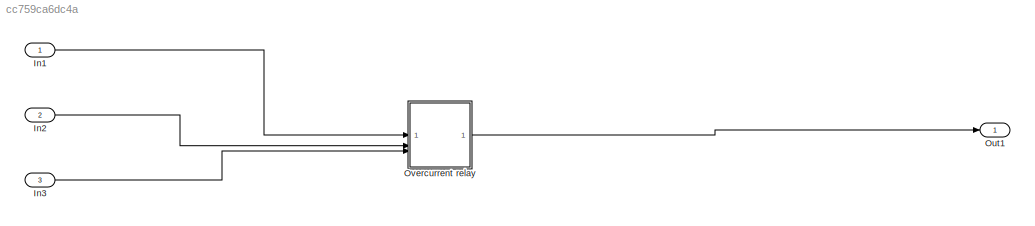
MODEL slx_cc759ca6dc4a
KIND model
CONFIG AbsTol = auto
CONFIG EnableMultiTasking = off
CONFIG FixedStep = auto
CONFIG MaxStep = auto
CONFIG MinStep = auto
CONFIG RelTol = 1e-3
CONFIG SampleTimeConstraint = Unconstrained
CONFIG SolverName = VariableStepAuto
CONFIG StartTime = 0.0
CONFIG StopTime = 10.0
BLOCK [Inport] In1
BLOCK [Inport] In2
  Port = 2
BLOCK [Inport] In3
  Port = 3
BLOCK [Outport] Out1
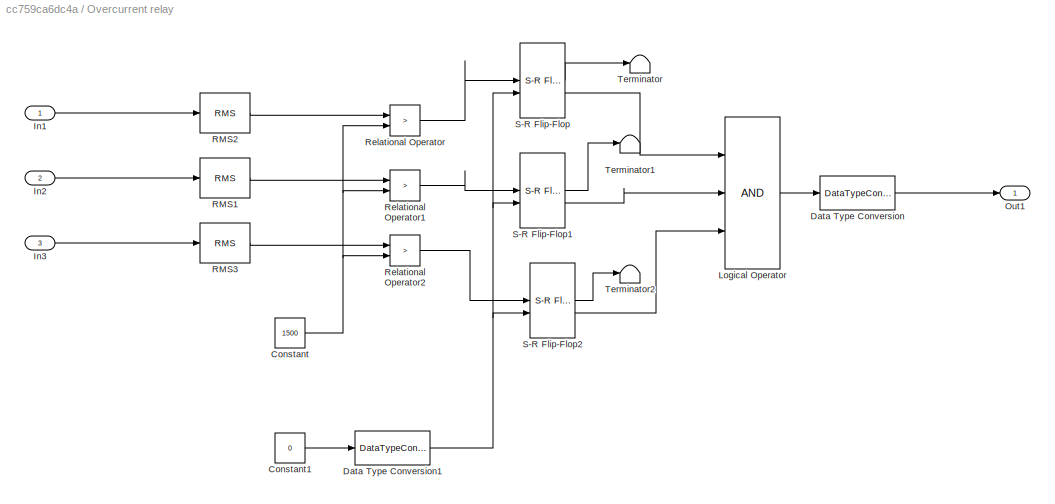
BLOCK [SubSystem] Overcurrent relay
BLOCK [Constant] Overcurrent relay/Constant
  Value = 1500
BLOCK [Constant] Overcurrent relay/Constant1
  Value = 0
BLOCK [DataTypeConversion] Overcurrent relay/Data Type Conversion
  OutDataTypeStr = double
  RndMeth = Floor
  SaturateOnIntegerOverflow = off
BLOCK [DataTypeConversion] Overcurrent relay/Data Type Conversion1
  OutDataTypeStr = boolean
  RndMeth = Floor
  SaturateOnIntegerOverflow = off
BLOCK [Inport] Overcurrent relay/In1
BLOCK [Inport] Overcurrent relay/In2
  Port = 2
BLOCK [Inport] Overcurrent relay/In3
  Port = 3
BLOCK [Logic] Overcurrent relay/Logical Operator
  AllPortsSameDT = off
  Inputs = 3
  OutDataTypeStr = boolean
BLOCK [Outport] Overcurrent relay/Out1
BLOCK [Reference] Overcurrent relay/RMS1  REF=spsRMSLib/RMS
  LibrarySourceBlock = sps_lib/Sensors and Measurements/RMS
  SourceBlock = spsRMSLib/RMS
  SourceType = RMS
BLOCK [Reference] Overcurrent relay/RMS2  REF=spsRMSLib/RMS
  LibrarySourceBlock = sps_lib/Sensors and Measurements/RMS
  SourceBlock = spsRMSLib/RMS
  SourceType = RMS
BLOCK [Reference] Overcurrent relay/RMS3  REF=spsRMSLib/RMS
  LibrarySourceBlock = sps_lib/Sensors and Measurements/RMS
  SourceBlock = spsRMSLib/RMS
  SourceType = RMS
BLOCK [RelationalOperator] Overcurrent relay/Relational Operator
  InputSameDT = off
  Operator = >
  OutDataTypeStr = boolean
BLOCK [RelationalOperator] Overcurrent relay/Relational Operator1
  InputSameDT = off
  Operator = >
  OutDataTypeStr = boolean
BLOCK [RelationalOperator] Overcurrent relay/Relational Operator2
  InputSameDT = off
  Operator = >
  OutDataTypeStr = boolean
BLOCK [Reference] Overcurrent relay/S-R Flip-Flop  REF=simulink_extras/Flip Flops/S-R
Flip-Flop
  SourceBlock = simulink_extras/Flip Flops/S-R\nFlip-Flop
  SourceType = SRFlipFlop
BLOCK [Reference] Overcurrent relay/S-R Flip-Flop1  REF=simulink_extras/Flip Flops/S-R
Flip-Flop
  SourceBlock = simulink_extras/Flip Flops/S-R\nFlip-Flop
  SourceType = SRFlipFlop
BLOCK [Reference] Overcurrent relay/S-R Flip-Flop2  REF=simulink_extras/Flip Flops/S-R
Flip-Flop
  SourceBlock = simulink_extras/Flip Flops/S-R\nFlip-Flop
  SourceType = SRFlipFlop
BLOCK [Terminator] Overcurrent relay/Terminator
BLOCK [Terminator] Overcurrent relay/Terminator1
BLOCK [Terminator] Overcurrent relay/Terminator2
LINE In1:1 -> Overcurrent relay:1
LINE In2:1 -> Overcurrent relay:2
LINE In3:1 -> Overcurrent relay:3
LINE Overcurrent relay/Constant1:1 -> Overcurrent relay/Data Type Conversion1:1
NET Overcurrent relay/Constant:1 -> Overcurrent relay/Relational Operator1:2, Overcurrent relay/Relational Operator2:2, Overcurrent relay/Relational Operator:2
NET Overcurrent relay/Data Type Conversion1:1 -> Overcurrent relay/S-R Flip-Flop1:2, Overcurrent relay/S-R Flip-Flop2:2, Overcurrent relay/S-R Flip-Flop:2
LINE Overcurrent relay/Data Type Conversion:1 -> Overcurrent relay/Out1:1
LINE Overcurrent relay/In1:1 -> Overcurrent relay/RMS2:1
LINE Overcurrent relay/In2:1 -> Overcurrent relay/RMS1:1
LINE Overcurrent relay/In3:1 -> Overcurrent relay/RMS3:1
LINE Overcurrent relay/Logical Operator:1 -> Overcurrent relay/Data Type Conversion:1
LINE Overcurrent relay/RMS1:1 -> Overcurrent relay/Relational Operator1:1
LINE Overcurrent relay/RMS2:1 -> Overcurrent relay/Relational Operator:1
LINE Overcurrent relay/RMS3:1 -> Overcurrent relay/Relational Operator2:1
LINE Overcurrent relay/Relational Operator1:1 -> Overcurrent relay/S-R Flip-Flop1:1
LINE Overcurrent relay/Relational Operator2:1 -> Overcurrent relay/S-R Flip-Flop2:1
LINE Overcurrent relay/Relational Operator:1 -> Overcurrent relay/S-R Flip-Flop:1
LINE Overcurrent relay/S-R Flip-Flop1:1 -> Overcurrent relay/Terminator1:1
LINE Overcurrent relay/S-R Flip-Flop1:2 -> Overcurrent relay/Logical Operator:2
LINE Overcurrent relay/S-R Flip-Flop2:1 -> Overcurrent relay/Terminator2:1
LINE Overcurrent relay/S-R Flip-Flop2:2 -> Overcurrent relay/Logical Operator:3
LINE Overcurrent relay/S-R Flip-Flop:1 -> Overcurrent relay/Terminator:1
LINE Overcurrent relay/S-R Flip-Flop:2 -> Overcurrent relay/Logical Operator:1
LINE Overcurrent relay:1 -> Out1:1
note: NET lines group one-source signal fan-out (src -> all destinations, sorted); 1:1 wires keep LINE
